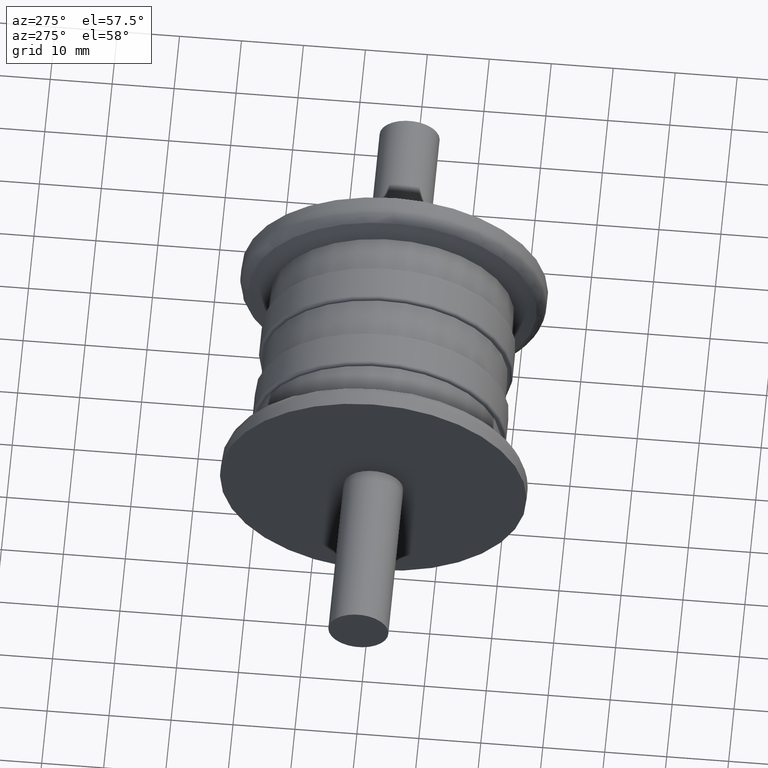
[diagram: clean part render]
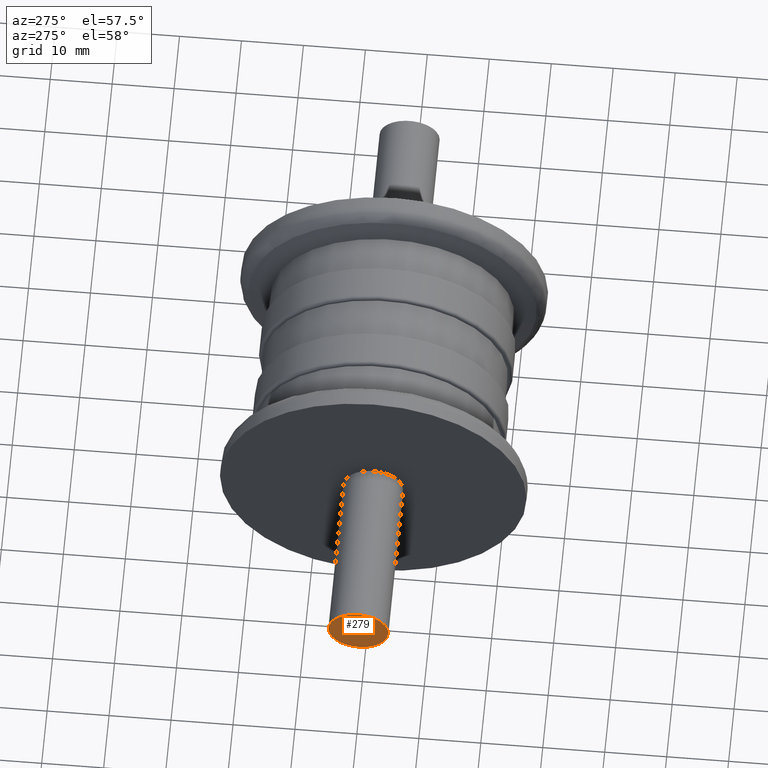
[diagram: same view with one face highlighted and labeled with its STEP entity id]
A machine part, auxiliary view. The second image highlights one B-rep face of the part: STEP entity #279.
In plain terms, the highlighted planar face has unit normal (-1, -0, 0).
Its self-contained STEP definition (entity closure, byte-faithful):
#22=PLANE('',#329);
#80=FACE_OUTER_BOUND('',#127,.T.);
#127=EDGE_LOOP('',(#247));
#153=CIRCLE('',#330,4.85);
#177=VERTEX_POINT('',#503);
#201=EDGE_CURVE('',#177,#177,#153,.T.);
#247=ORIENTED_EDGE('',*,*,#201,.F.);
#279=ADVANCED_FACE('',(#80),#22,.T.);
#329=AXIS2_PLACEMENT_3D('',#502,#426,#427);
#330=AXIS2_PLACEMENT_3D('',#504,#428,#429);
#426=DIRECTION('center_axis',(-1.,-2.24855296126614E-16,0.));
#427=DIRECTION('ref_axis',(0.,0.,1.));
#428=DIRECTION('center_axis',(1.,2.24855296126614E-16,0.));
#429=DIRECTION('ref_axis',(0.,0.,-1.));
#502=CARTESIAN_POINT('Origin',(-47.25,4.84999999999999,0.));
#503=CARTESIAN_POINT('',(-47.25,4.84999999999999,0.));
#504=CARTESIAN_POINT('Origin',(-47.25,-1.06244127419825E-14,0.));